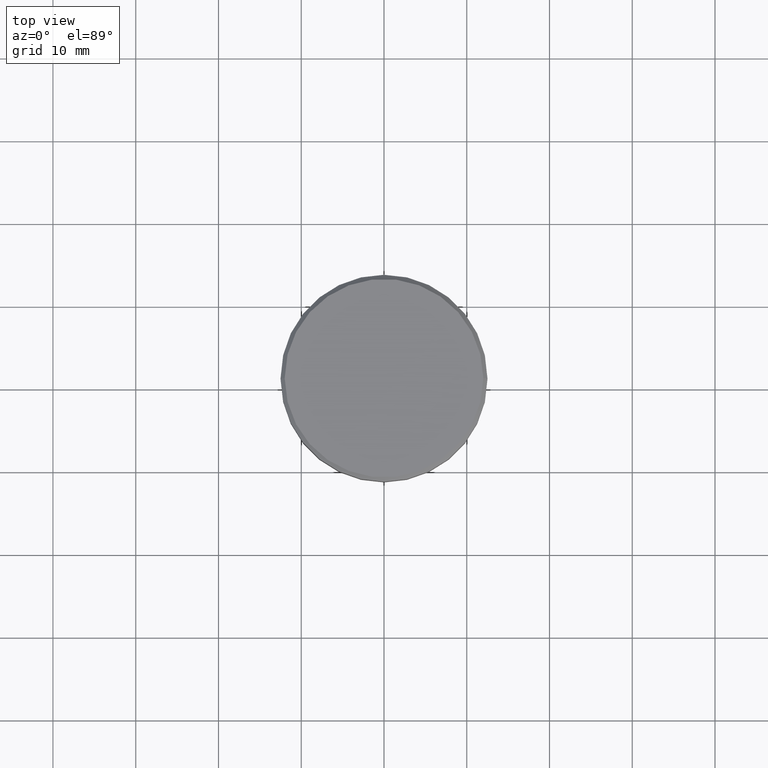
[diagram: clean part render]
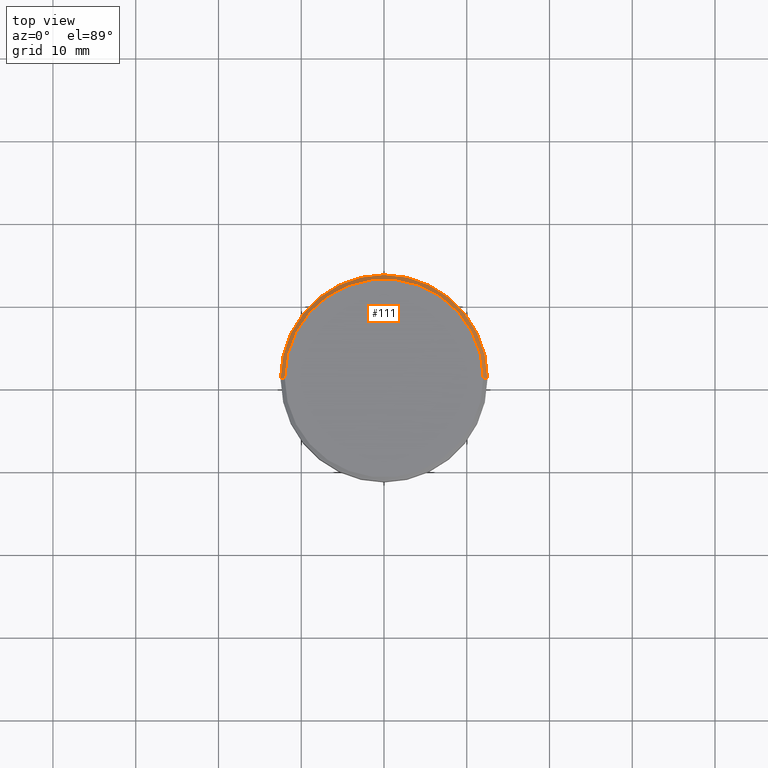
[diagram: same view with one face highlighted and labeled with its STEP entity id]
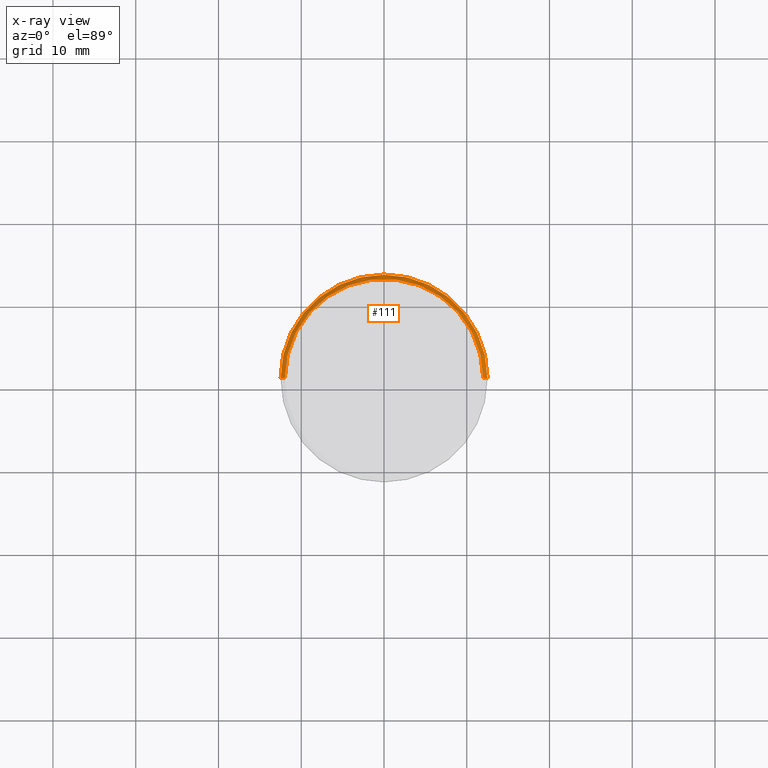
[diagram: x-ray of the same camera — body ghosted, the highlighted face saturated]
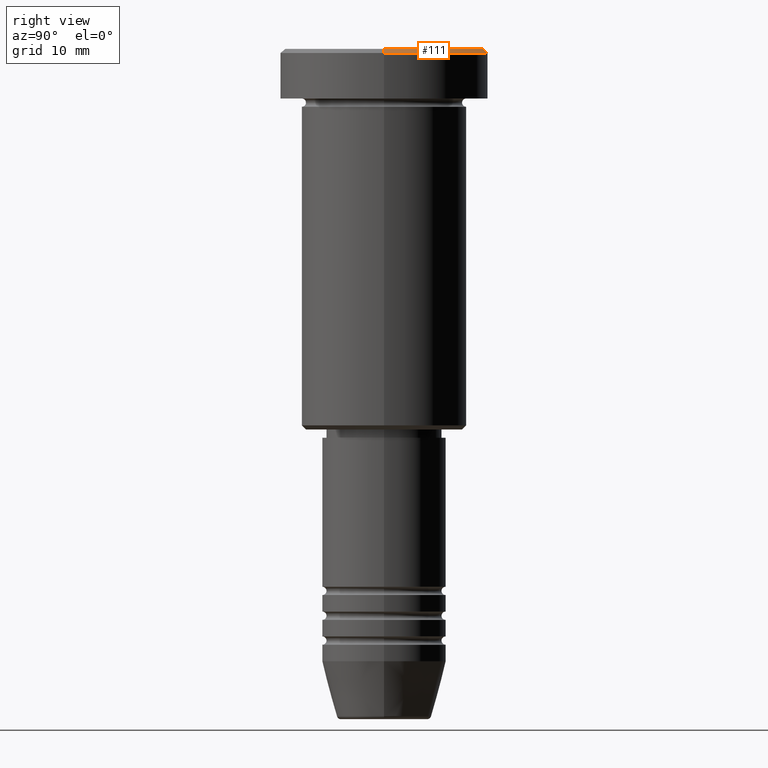
[diagram: same view with one face highlighted and labeled with its STEP entity id]
A machine part, top view. The second image highlights one B-rep face of the part: STEP entity #111.
The next image is the same camera in x-ray: the body ghosted, the highlighted face saturated — about 0% of this face is hidden behind the body in this view.
A second angle (right view) of the same face is appended — the face is thin or edge-on in the first view.
In plain terms, the highlighted conical surface has half-angle 45 deg.
Its self-contained STEP definition (entity closure, byte-faithful):
#12 = AXIS2_PLACEMENT_3D ( 'NONE', #518, #49, #524 ) ;
#15 = EDGE_CURVE ( 'NONE', #545, #1050, #379, .T. ) ;
#49 = DIRECTION ( 'NONE',  ( 0.000000000000000000, 0.000000000000000000, -1.000000000000000000 ) ) ;
#56 = ORIENTED_EDGE ( 'NONE', *, *, #207, .F. ) ;
#111 = ADVANCED_FACE ( 'NONE', ( #167 ), #984, .T. ) ;
#167 = FACE_OUTER_BOUND ( 'NONE', #876, .T. ) ;
#173 = AXIS2_PLACEMENT_3D ( 'NONE', #709, #440, #1153 ) ;
#207 = EDGE_CURVE ( 'NONE', #893, #545, #528, .T. ) ;
#246 = DIRECTION ( 'NONE',  ( 0.7071067811865463515, 8.659560562354919300E-17, -0.7071067811865487940 ) ) ;
#260 = DIRECTION ( 'NONE',  ( 1.000000000000000000, 0.000000000000000000, 0.000000000000000000 ) ) ;
#282 = ORIENTED_EDGE ( 'NONE', *, *, #1004, .F. ) ;
#366 = CARTESIAN_POINT ( 'NONE',  ( -11.99999999999999645, 0.000000000000000000, 0.000000000000000000 ) ) ;
#379 = LINE ( 'NONE', #366, #746 ) ;
#431 = DIRECTION ( 'NONE',  ( -0.000000000000000000, -0.000000000000000000, 1.000000000000000000 ) ) ;
#440 = DIRECTION ( 'NONE',  ( 0.000000000000000000, 0.000000000000000000, -1.000000000000000000 ) ) ;
#443 = CARTESIAN_POINT ( 'NONE',  ( -12.50000000000000000, 1.530808498934191521E-15, -0.5000000000000056621 ) ) ;
#512 = LINE ( 'NONE', #897, #1100 ) ;
#518 = CARTESIAN_POINT ( 'NONE',  ( 0.000000000000000000, 0.000000000000000000, -0.5000000000000056621 ) ) ;
#524 = DIRECTION ( 'NONE',  ( 1.000000000000000000, 0.000000000000000000, 0.000000000000000000 ) ) ;
#528 = CIRCLE ( 'NONE', #810, 11.99999999999999645 ) ;
#545 = VERTEX_POINT ( 'NONE', #665 ) ;
#618 = CARTESIAN_POINT ( 'NONE',  ( 0.000000000000000000, 0.000000000000000000, 0.000000000000000000 ) ) ;
#651 = DIRECTION ( 'NONE',  ( -0.7071067811865463515, 0.000000000000000000, -0.7071067811865487940 ) ) ;
#665 = CARTESIAN_POINT ( 'NONE',  ( -11.99999999999999645, 0.000000000000000000, 0.000000000000000000 ) ) ;
#677 = ORIENTED_EDGE ( 'NONE', *, *, #1109, .T. ) ;
#691 = ORIENTED_EDGE ( 'NONE', *, *, #15, .F. ) ;
#709 = CARTESIAN_POINT ( 'NONE',  ( 0.000000000000000000, 0.000000000000000000, 0.000000000000000000 ) ) ;
#746 = VECTOR ( 'NONE', #651, 1000.000000000000000 ) ;
#810 = AXIS2_PLACEMENT_3D ( 'NONE', #618, #431, #260 ) ;
#876 = EDGE_LOOP ( 'NONE', ( #56, #677, #282, #691 ) ) ;
#893 = VERTEX_POINT ( 'NONE', #1134 ) ;
#896 = CIRCLE ( 'NONE', #12, 12.50000000000000000 ) ;
#897 = CARTESIAN_POINT ( 'NONE',  ( 11.99999999999999645, 1.469576158976823553E-15, 0.000000000000000000 ) ) ;
#984 = CONICAL_SURFACE ( 'NONE', #173, 11.99999999999999645, 0.7853981633974466137 ) ;
#1004 = EDGE_CURVE ( 'NONE', #1050, #1147, #896, .T. ) ;
#1050 = VERTEX_POINT ( 'NONE', #443 ) ;
#1078 = CARTESIAN_POINT ( 'NONE',  ( 12.50000000000000000, 0.000000000000000000, -0.5000000000000056621 ) ) ;
#1100 = VECTOR ( 'NONE', #246, 1000.000000000000000 ) ;
#1109 = EDGE_CURVE ( 'NONE', #893, #1147, #512, .T. ) ;
#1134 = CARTESIAN_POINT ( 'NONE',  ( 11.99999999999999645, 1.500192328955507537E-15, 0.000000000000000000 ) ) ;
#1147 = VERTEX_POINT ( 'NONE', #1078 ) ;
#1153 = DIRECTION ( 'NONE',  ( -1.000000000000000000, 0.000000000000000000, 0.000000000000000000 ) ) ;